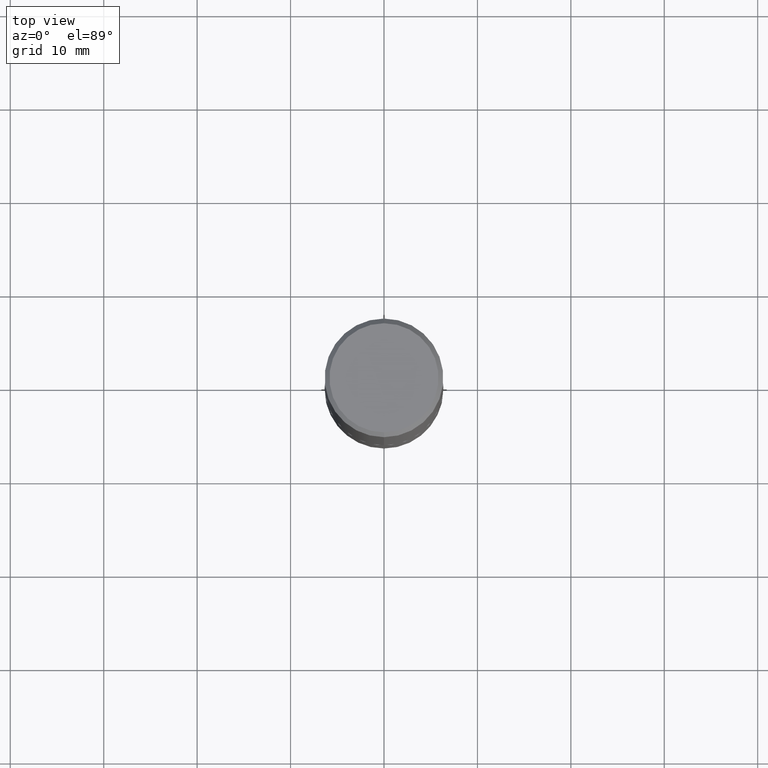
[diagram: clean part render]
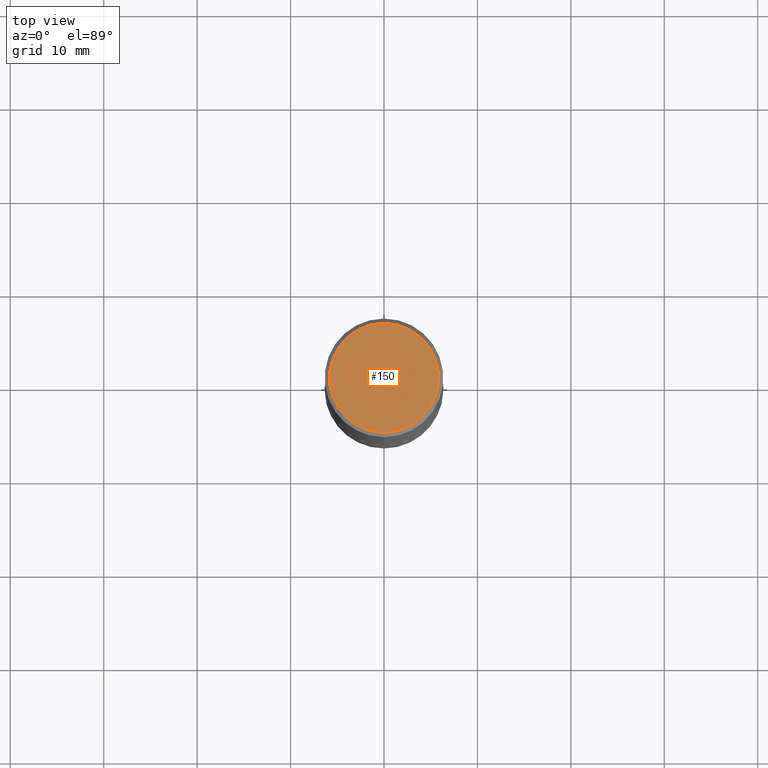
[diagram: same view with one face highlighted and labeled with its STEP entity id]
A machine part, top view. The second image highlights one B-rep face of the part: STEP entity #150.
In plain terms, the highlighted planar face has unit normal (0, -0, -1).
Its self-contained STEP definition (entity closure, byte-faithful):
#24 = AXIS2_PLACEMENT_3D ( 'NONE', #184, #180, #317 ) ;
#25 = DIRECTION ( 'NONE',  ( -2.444172389132166101E-29, 3.493337881850475664E-15, 1.000000000000000000 ) ) ;
#38 = CARTESIAN_POINT ( 'NONE',  ( -1.646519519465166770E-15, -0.2299999999999998990, 8.978019924995039553E-16 ) ) ;
#95 = ORIENTED_EDGE ( 'NONE', *, *, #103, .T. ) ;
#103 = EDGE_CURVE ( 'NONE', #287, #255, #131, .T. ) ;
#123 = AXIS2_PLACEMENT_3D ( 'NONE', #277, #25, #374 ) ;
#124 = DIRECTION ( 'NONE',  ( -2.444172389132166101E-29, 3.493337881850475664E-15, 1.000000000000000000 ) ) ;
#131 = CIRCLE ( 'NONE', #123, 0.2299999999999998990 ) ;
#150 = ADVANCED_FACE ( 'NONE', ( #215 ), #379, .F. ) ;
#154 = DIRECTION ( 'NONE',  ( -6.982962677686265922E-15, -1.000000000000000000, 3.493337881850475270E-15 ) ) ;
#164 = CIRCLE ( 'NONE', #337, 0.2299999999999998990 ) ;
#180 = DIRECTION ( 'NONE',  ( 2.444172389132165541E-29, -3.493337881850476059E-15, -1.000000000000000000 ) ) ;
#184 = CARTESIAN_POINT ( 'NONE',  ( 1.606081415867840476E-15, 0.2299999999999998990, -7.563005729886615428E-16 ) ) ;
#196 = ORIENTED_EDGE ( 'NONE', *, *, #330, .T. ) ;
#211 = CARTESIAN_POINT ( 'NONE',  ( 1.675911042644703774E-15, 0.2299999999999998990, -7.091334331517141048E-16 ) ) ;
#215 = FACE_OUTER_BOUND ( 'NONE', #264, .T. ) ;
#218 = CARTESIAN_POINT ( 'NONE',  ( -2.305692417276057151E-45, 3.295415127418944709E-31, 9.433427967389492523E-17 ) ) ;
#255 = VERTEX_POINT ( 'NONE', #211 ) ;
#264 = EDGE_LOOP ( 'NONE', ( #196, #95 ) ) ;
#277 = CARTESIAN_POINT ( 'NONE',  ( -2.305692417276057151E-45, 3.295415127418944709E-31, 9.433427967389492523E-17 ) ) ;
#287 = VERTEX_POINT ( 'NONE', #38 ) ;
#317 = DIRECTION ( 'NONE',  ( 6.982962677686265922E-15, 1.000000000000000000, -3.493337881850476059E-15 ) ) ;
#330 = EDGE_CURVE ( 'NONE', #255, #287, #164, .T. ) ;
#337 = AXIS2_PLACEMENT_3D ( 'NONE', #218, #124, #154 ) ;
#374 = DIRECTION ( 'NONE',  ( -6.982962677686265922E-15, -1.000000000000000000, 3.493337881850475270E-15 ) ) ;
#379 = PLANE ( 'NONE',  #24 ) ;